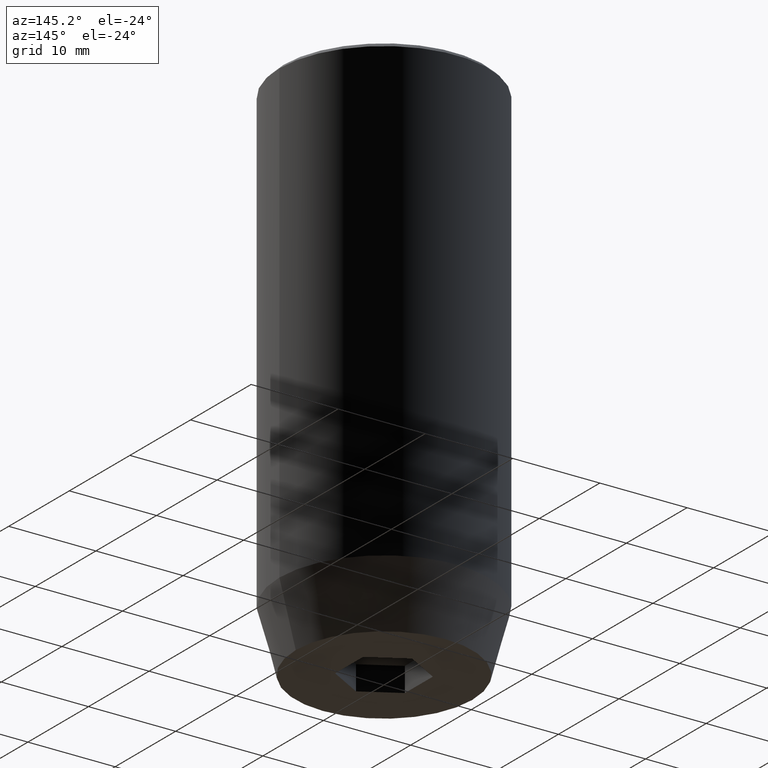
[diagram: clean part render]
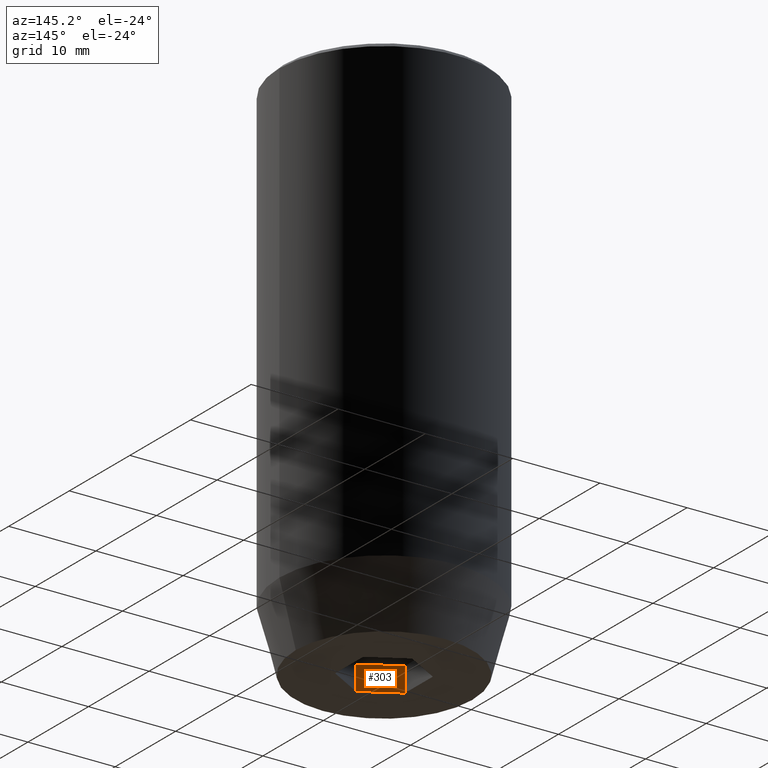
[diagram: same view with one face highlighted and labeled with its STEP entity id]
A machine part, auxiliary view. The second image highlights one B-rep face of the part: STEP entity #303.
In plain terms, the highlighted planar face has unit normal (-0.5, -0.866, 0).
Its self-contained STEP definition (entity closure, byte-faithful):
#11 = CARTESIAN_POINT ( 'NONE',  ( -2.000000000000000888, -3.464101615137754386, -57.20000000000000284 ) ) ;
#26 = CARTESIAN_POINT ( 'NONE',  ( 4.336808689942017736E-16, -4.618802153517006737, -60.00000000000000000 ) ) ;
#31 = ORIENTED_EDGE ( 'NONE', *, *, #510, .F. ) ;
#52 = FACE_OUTER_BOUND ( 'NONE', #376, .T. ) ;
#73 = CARTESIAN_POINT ( 'NONE',  ( -4.000000000000000000, -2.309401076758503368, -57.20000000000000284 ) ) ;
#97 = LINE ( 'NONE', #187, #144 ) ;
#109 = PLANE ( 'NONE',  #321 ) ;
#131 = DIRECTION ( 'NONE',  ( -0.8660254037844384856, 0.5000000000000002220, 0.000000000000000000 ) ) ;
#132 = VECTOR ( 'NONE', #285, 1000.000000000000000 ) ;
#144 = VECTOR ( 'NONE', #148, 1000.000000000000114 ) ;
#148 = DIRECTION ( 'NONE',  ( -0.8660254037844384856, 0.5000000000000002220, 0.000000000000000000 ) ) ;
#150 = DIRECTION ( 'NONE',  ( 0.8660254037844384856, -0.5000000000000002220, 0.000000000000000000 ) ) ;
#152 = VERTEX_POINT ( 'NONE', #379 ) ;
#154 = DIRECTION ( 'NONE',  ( -0.5000000000000003331, -0.8660254037844385966, 0.000000000000000000 ) ) ;
#187 = CARTESIAN_POINT ( 'NONE',  ( -2.000000000000000888, -3.464101615137754386, -60.00000000000000000 ) ) ;
#210 = EDGE_CURVE ( 'NONE', #496, #520, #97, .T. ) ;
#219 = VECTOR ( 'NONE', #131, 1000.000000000000114 ) ;
#236 = EDGE_CURVE ( 'NONE', #152, #496, #548, .T. ) ;
#246 = EDGE_CURVE ( 'NONE', #540, #520, #457, .T. ) ;
#261 = CARTESIAN_POINT ( 'NONE',  ( -4.000000000000000000, -2.309401076758503368, -60.00000000000000000 ) ) ;
#280 = CARTESIAN_POINT ( 'NONE',  ( 4.336808689942017736E-16, -4.618802153517006737, -57.20000000000000284 ) ) ;
#285 = DIRECTION ( 'NONE',  ( -0.000000000000000000, -0.000000000000000000, -1.000000000000000000 ) ) ;
#303 = ADVANCED_FACE ( 'NONE', ( #52 ), #109, .F. ) ;
#321 = AXIS2_PLACEMENT_3D ( 'NONE', #11, #154, #150 ) ;
#338 = ORIENTED_EDGE ( 'NONE', *, *, #210, .T. ) ;
#359 = LINE ( 'NONE', #491, #219 ) ;
#376 = EDGE_LOOP ( 'NONE', ( #338, #561, #31, #552 ) ) ;
#379 = CARTESIAN_POINT ( 'NONE',  ( 4.336808689942017736E-16, -4.618802153517006737, -57.20000000000000284 ) ) ;
#419 = CARTESIAN_POINT ( 'NONE',  ( -4.000000000000000000, -2.309401076758503368, -57.20000000000000284 ) ) ;
#457 = LINE ( 'NONE', #419, #132 ) ;
#460 = DIRECTION ( 'NONE',  ( -0.000000000000000000, -0.000000000000000000, -1.000000000000000000 ) ) ;
#491 = CARTESIAN_POINT ( 'NONE',  ( -2.000000000000000888, -3.464101615137754386, -57.20000000000000284 ) ) ;
#496 = VERTEX_POINT ( 'NONE', #26 ) ;
#510 = EDGE_CURVE ( 'NONE', #152, #540, #359, .T. ) ;
#520 = VERTEX_POINT ( 'NONE', #261 ) ;
#540 = VERTEX_POINT ( 'NONE', #73 ) ;
#548 = LINE ( 'NONE', #280, #565 ) ;
#552 = ORIENTED_EDGE ( 'NONE', *, *, #236, .T. ) ;
#561 = ORIENTED_EDGE ( 'NONE', *, *, #246, .F. ) ;
#565 = VECTOR ( 'NONE', #460, 1000.000000000000000 ) ;